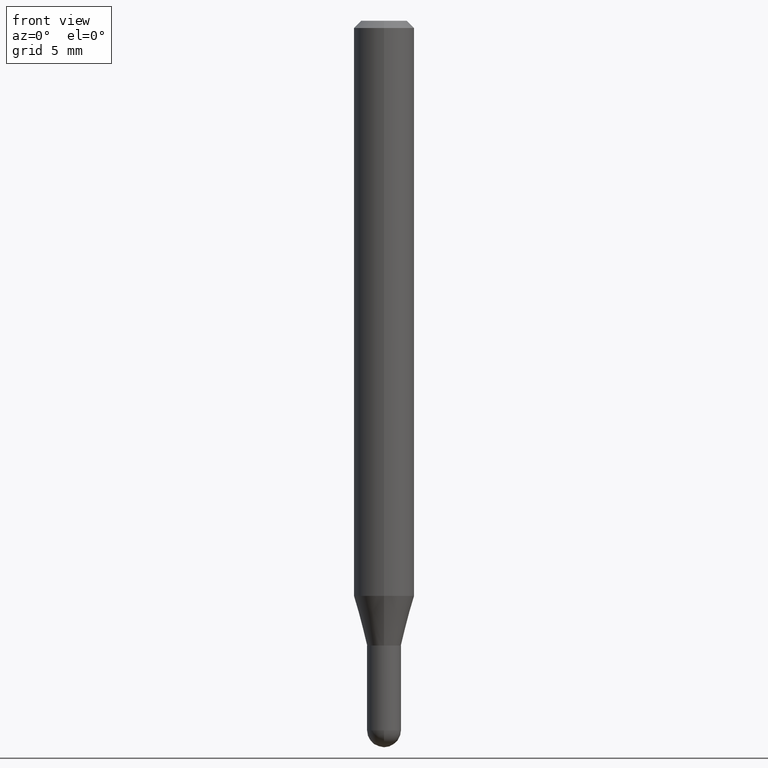
[diagram: clean part render]
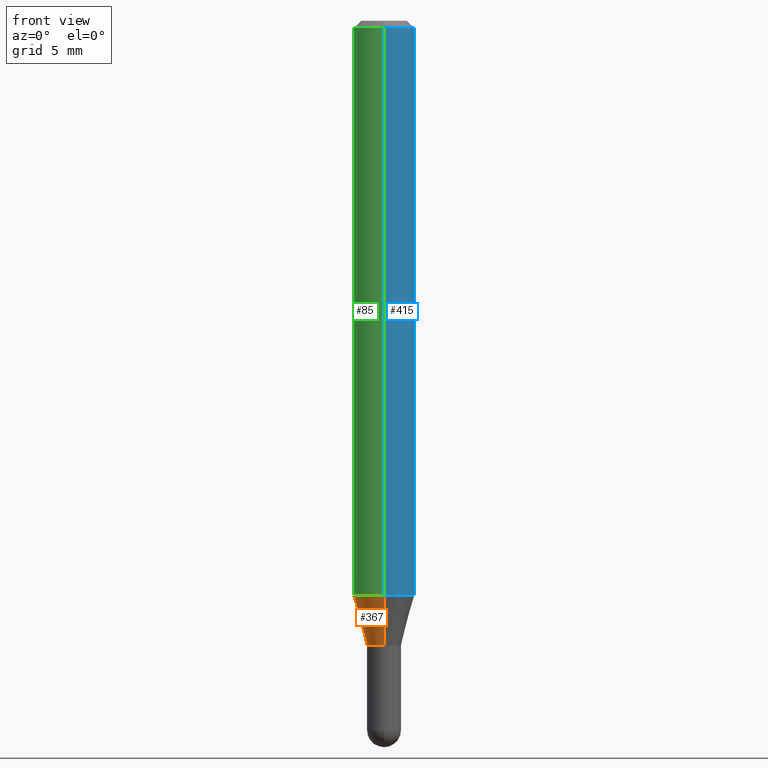
[diagram: same view with three faces highlighted in distinct colors, each labeled with its STEP entity id]
A machine part, front view with three faces highlighted in distinct colors.
Their STEP definitions:

[orange] entity #367 — the highlighted conical surface has half-angle 15 deg.
#21 = VERTEX_POINT ( 'NONE', #49 ) ;
#41 = EDGE_CURVE ( 'NONE', #21, #381, #189, .T. ) ;
#43 = DIRECTION ( 'NONE',  ( -1.807323732225383782E-15, -0.2588190451025258465, 0.9659258262890669799 ) ) ;
#49 = CARTESIAN_POINT ( 'NONE',  ( 3.463895836830799138E-16, 0.03499999999999569428, -1.290000000000000258 ) ) ;
#51 = CIRCLE ( 'NONE', #477, 0.06250000000000000000 ) ;
#62 = CARTESIAN_POINT ( 'NONE',  ( 3.154508998517572521E-29, -4.504219665816400546E-15, -1.290000000000000258 ) ) ;
#69 = VERTEX_POINT ( 'NONE', #364 ) ;
#111 = CARTESIAN_POINT ( 'NONE',  ( 4.440892098500914096E-16, 0.06249999999999581585, -1.187368602791860628 ) ) ;
#123 = DIRECTION ( 'NONE',  ( -2.445355812804319673E-29, 3.491643151795659130E-15, 1.000000000000000000 ) ) ;
#125 = AXIS2_PLACEMENT_3D ( 'NONE', #299, #123, #225 ) ;
#138 = FACE_OUTER_BOUND ( 'NONE', #150, .T. ) ;
#140 = CARTESIAN_POINT ( 'NONE',  ( -4.364351673553628760E-16, -0.06250000000000417721, -1.187368602791860184 ) ) ;
#150 = EDGE_LOOP ( 'NONE', ( #286, #497, #338, #462 ) ) ;
#170 = DIRECTION ( 'NONE',  ( -2.445355812804319673E-29, 3.491643151795659130E-15, 1.000000000000000000 ) ) ;
#189 = LINE ( 'NONE', #347, #354 ) ;
#208 = CIRCLE ( 'NONE', #125, 0.03500000000000019762 ) ;
#218 = LINE ( 'NONE', #427, #369 ) ;
#225 = DIRECTION ( 'NONE',  ( -6.982962677686265133E-15, -1.000000000000000000, 0.000000000000000000 ) ) ;
#248 = EDGE_CURVE ( 'NONE', #381, #329, #51, .T. ) ;
#286 = ORIENTED_EDGE ( 'NONE', *, *, #41, .F. ) ;
#299 = CARTESIAN_POINT ( 'NONE',  ( 3.154508998517572521E-29, -4.504219665816400546E-15, -1.290000000000000258 ) ) ;
#320 = CARTESIAN_POINT ( 'NONE',  ( 2.903538714778418821E-29, -4.145867450595379478E-15, -1.187368602791860406 ) ) ;
#322 = DIRECTION ( 'NONE',  ( -6.982962677686265133E-15, -1.000000000000000000, 0.000000000000000000 ) ) ;
#329 = VERTEX_POINT ( 'NONE', #140 ) ;
#338 = ORIENTED_EDGE ( 'NONE', *, *, #475, .T. ) ;
#346 = CONICAL_SURFACE ( 'NONE', #412, 0.03500000000000019762, 0.2617993877991582341 ) ;
#347 = CARTESIAN_POINT ( 'NONE',  ( 2.486899575160679744E-16, 0.03499999999999569428, -1.290000000000000258 ) ) ;
#354 = VECTOR ( 'NONE', #512, 39.37007874015748143 ) ;
#364 = CARTESIAN_POINT ( 'NONE',  ( -2.444036937189891511E-16, -0.03500000000000470096, -1.290000000000000258 ) ) ;
#367 = ADVANCED_FACE ( 'NONE', ( #138 ), #346, .T. ) ;
#369 = VECTOR ( 'NONE', #43, 39.37007874015748143 ) ;
#381 = VERTEX_POINT ( 'NONE', #111 ) ;
#410 = DIRECTION ( 'NONE',  ( -2.445355812804319673E-29, 3.491643151795659130E-15, 1.000000000000000000 ) ) ;
#412 = AXIS2_PLACEMENT_3D ( 'NONE', #62, #170, #322 ) ;
#427 = CARTESIAN_POINT ( 'NONE',  ( -2.444036937189891511E-16, -0.03500000000000470096, -1.290000000000000258 ) ) ;
#432 = EDGE_CURVE ( 'NONE', #21, #69, #208, .T. ) ;
#455 = DIRECTION ( 'NONE',  ( -6.982962677686265922E-15, -1.000000000000000000, 4.370956789862821150E-15 ) ) ;
#462 = ORIENTED_EDGE ( 'NONE', *, *, #248, .F. ) ;
#475 = EDGE_CURVE ( 'NONE', #69, #329, #218, .T. ) ;
#477 = AXIS2_PLACEMENT_3D ( 'NONE', #320, #410, #455 ) ;
#497 = ORIENTED_EDGE ( 'NONE', *, *, #432, .T. ) ;
#512 = DIRECTION ( 'NONE',  ( 1.839019923739654747E-15, 0.2588190451025326189, 0.9659258262890650926 ) ) ;

[blue] entity #415 — the highlighted cylindrical surface (edge-blend (fillet) strip) has radius 1.5875 mm, axis along (-0, 0, 1).
#10 = AXIS2_PLACEMENT_3D ( 'NONE', #114, #147, #417 ) ;
#30 = DIRECTION ( 'NONE',  ( -2.445355812804319953E-29, 3.491643151795659524E-15, 1.000000000000000000 ) ) ;
#50 = FACE_OUTER_BOUND ( 'NONE', #268, .T. ) ;
#63 = DIRECTION ( 'NONE',  ( -6.982962677686265922E-15, -1.000000000000000000, 4.370956789862821150E-15 ) ) ;
#104 = LINE ( 'NONE', #295, #255 ) ;
#111 = CARTESIAN_POINT ( 'NONE',  ( 4.440892098500914096E-16, 0.06249999999999581585, -1.187368602791860628 ) ) ;
#114 = CARTESIAN_POINT ( 'NONE',  ( 0.000000000000000000, 0.000000000000000000, 0.000000000000000000 ) ) ;
#127 = AXIS2_PLACEMENT_3D ( 'NONE', #291, #245, #63 ) ;
#132 = CARTESIAN_POINT ( 'NONE',  ( 4.440892098500919026E-16, 0.06249999999999995837, -0.01500000000000028394 ) ) ;
#140 = CARTESIAN_POINT ( 'NONE',  ( -4.364351673553628760E-16, -0.06250000000000417721, -1.187368602791860184 ) ) ;
#147 = DIRECTION ( 'NONE',  ( -2.445355812804319673E-29, 3.491643151795659130E-15, 1.000000000000000000 ) ) ;
#149 = DIRECTION ( 'NONE',  ( -6.982962677686265922E-15, -1.000000000000000000, 3.483106191921935554E-15 ) ) ;
#163 = EDGE_CURVE ( 'NONE', #329, #381, #393, .T. ) ;
#169 = ORIENTED_EDGE ( 'NONE', *, *, #163, .T. ) ;
#206 = ORIENTED_EDGE ( 'NONE', *, *, #253, .T. ) ;
#207 = LINE ( 'NONE', #445, #224 ) ;
#224 = VECTOR ( 'NONE', #366, 39.37007874015748143 ) ;
#245 = DIRECTION ( 'NONE',  ( -2.445355812804319673E-29, 3.491643151795659130E-15, 1.000000000000000000 ) ) ;
#253 = EDGE_CURVE ( 'NONE', #381, #282, #104, .T. ) ;
#255 = VECTOR ( 'NONE', #30, 39.37007874015748143 ) ;
#268 = EDGE_LOOP ( 'NONE', ( #169, #206, #467, #341 ) ) ;
#279 = AXIS2_PLACEMENT_3D ( 'NONE', #339, #389, #149 ) ;
#280 = VERTEX_POINT ( 'NONE', #363 ) ;
#282 = VERTEX_POINT ( 'NONE', #132 ) ;
#291 = CARTESIAN_POINT ( 'NONE',  ( 2.903538714778418821E-29, -4.145867450595379478E-15, -1.187368602791860406 ) ) ;
#295 = CARTESIAN_POINT ( 'NONE',  ( 4.440892098500625669E-16, 0.06250000000000000000, -2.182276969872286956E-16 ) ) ;
#308 = CYLINDRICAL_SURFACE ( 'NONE', #10, 0.06250000000000000000 ) ;
#329 = VERTEX_POINT ( 'NONE', #140 ) ;
#339 = CARTESIAN_POINT ( 'NONE',  ( 3.668033719206495817E-31, -5.237464727693512311E-17, -0.01500000000000006710 ) ) ;
#341 = ORIENTED_EDGE ( 'NONE', *, *, #343, .F. ) ;
#343 = EDGE_CURVE ( 'NONE', #329, #280, #207, .T. ) ;
#363 = CARTESIAN_POINT ( 'NONE',  ( -4.364351673553912750E-16, -0.06250000000000005551, -0.01499999999999984852 ) ) ;
#366 = DIRECTION ( 'NONE',  ( -2.445355812804319953E-29, 3.491643151795659524E-15, 1.000000000000000000 ) ) ;
#381 = VERTEX_POINT ( 'NONE', #111 ) ;
#389 = DIRECTION ( 'NONE',  ( -2.445355812804319673E-29, 3.491643151795659130E-15, 1.000000000000000000 ) ) ;
#393 = CIRCLE ( 'NONE', #127, 0.06250000000000000000 ) ;
#415 = ADVANCED_FACE ( 'NONE', ( #50 ), #308, .T. ) ;
#417 = DIRECTION ( 'NONE',  ( -6.982962677686265922E-15, -1.000000000000000000, 3.491643151795659130E-15 ) ) ;
#439 = CIRCLE ( 'NONE', #279, 0.06250000000000000000 ) ;
#445 = CARTESIAN_POINT ( 'NONE',  ( -4.364351673553916201E-16, -0.06250000000000000000, 2.182276969872286956E-16 ) ) ;
#467 = ORIENTED_EDGE ( 'NONE', *, *, #482, .F. ) ;
#482 = EDGE_CURVE ( 'NONE', #280, #282, #439, .T. ) ;

[green] entity #85 — the highlighted cylindrical surface (edge-blend (fillet) strip) has radius 1.5875 mm, axis along (-0, 0, 1).
#2 = DIRECTION ( 'NONE',  ( -6.982962677686265922E-15, -1.000000000000000000, 3.483106191921935554E-15 ) ) ;
#18 = ORIENTED_EDGE ( 'NONE', *, *, #405, .F. ) ;
#30 = DIRECTION ( 'NONE',  ( -2.445355812804319953E-29, 3.491643151795659524E-15, 1.000000000000000000 ) ) ;
#38 = DIRECTION ( 'NONE',  ( -6.982962677686265922E-15, -1.000000000000000000, 3.491643151795659130E-15 ) ) ;
#42 = AXIS2_PLACEMENT_3D ( 'NONE', #368, #407, #38 ) ;
#51 = CIRCLE ( 'NONE', #477, 0.06250000000000000000 ) ;
#76 = FACE_OUTER_BOUND ( 'NONE', #172, .T. ) ;
#82 = DIRECTION ( 'NONE',  ( -2.445355812804319673E-29, 3.491643151795659130E-15, 1.000000000000000000 ) ) ;
#85 = ADVANCED_FACE ( 'NONE', ( #76 ), #135, .T. ) ;
#103 = ORIENTED_EDGE ( 'NONE', *, *, #253, .F. ) ;
#104 = LINE ( 'NONE', #295, #255 ) ;
#111 = CARTESIAN_POINT ( 'NONE',  ( 4.440892098500914096E-16, 0.06249999999999581585, -1.187368602791860628 ) ) ;
#132 = CARTESIAN_POINT ( 'NONE',  ( 4.440892098500919026E-16, 0.06249999999999995837, -0.01500000000000028394 ) ) ;
#135 = CYLINDRICAL_SURFACE ( 'NONE', #42, 0.06250000000000000000 ) ;
#140 = CARTESIAN_POINT ( 'NONE',  ( -4.364351673553628760E-16, -0.06250000000000417721, -1.187368602791860184 ) ) ;
#148 = ORIENTED_EDGE ( 'NONE', *, *, #248, .T. ) ;
#172 = EDGE_LOOP ( 'NONE', ( #103, #148, #209, #18 ) ) ;
#203 = CIRCLE ( 'NONE', #503, 0.06250000000000000000 ) ;
#207 = LINE ( 'NONE', #445, #224 ) ;
#209 = ORIENTED_EDGE ( 'NONE', *, *, #343, .T. ) ;
#224 = VECTOR ( 'NONE', #366, 39.37007874015748143 ) ;
#248 = EDGE_CURVE ( 'NONE', #381, #329, #51, .T. ) ;
#253 = EDGE_CURVE ( 'NONE', #381, #282, #104, .T. ) ;
#255 = VECTOR ( 'NONE', #30, 39.37007874015748143 ) ;
#280 = VERTEX_POINT ( 'NONE', #363 ) ;
#282 = VERTEX_POINT ( 'NONE', #132 ) ;
#295 = CARTESIAN_POINT ( 'NONE',  ( 4.440892098500625669E-16, 0.06250000000000000000, -2.182276969872286956E-16 ) ) ;
#320 = CARTESIAN_POINT ( 'NONE',  ( 2.903538714778418821E-29, -4.145867450595379478E-15, -1.187368602791860406 ) ) ;
#329 = VERTEX_POINT ( 'NONE', #140 ) ;
#343 = EDGE_CURVE ( 'NONE', #329, #280, #207, .T. ) ;
#363 = CARTESIAN_POINT ( 'NONE',  ( -4.364351673553912750E-16, -0.06250000000000005551, -0.01499999999999984852 ) ) ;
#366 = DIRECTION ( 'NONE',  ( -2.445355812804319953E-29, 3.491643151795659524E-15, 1.000000000000000000 ) ) ;
#368 = CARTESIAN_POINT ( 'NONE',  ( 0.000000000000000000, 0.000000000000000000, 0.000000000000000000 ) ) ;
#381 = VERTEX_POINT ( 'NONE', #111 ) ;
#405 = EDGE_CURVE ( 'NONE', #282, #280, #203, .T. ) ;
#407 = DIRECTION ( 'NONE',  ( -2.445355812804319673E-29, 3.491643151795659130E-15, 1.000000000000000000 ) ) ;
#410 = DIRECTION ( 'NONE',  ( -2.445355812804319673E-29, 3.491643151795659130E-15, 1.000000000000000000 ) ) ;
#445 = CARTESIAN_POINT ( 'NONE',  ( -4.364351673553916201E-16, -0.06250000000000000000, 2.182276969872286956E-16 ) ) ;
#455 = DIRECTION ( 'NONE',  ( -6.982962677686265922E-15, -1.000000000000000000, 4.370956789862821150E-15 ) ) ;
#477 = AXIS2_PLACEMENT_3D ( 'NONE', #320, #410, #455 ) ;
#503 = AXIS2_PLACEMENT_3D ( 'NONE', #504, #82, #2 ) ;
#504 = CARTESIAN_POINT ( 'NONE',  ( 3.668033719206495817E-31, -5.237464727693512311E-17, -0.01500000000000006710 ) ) ;